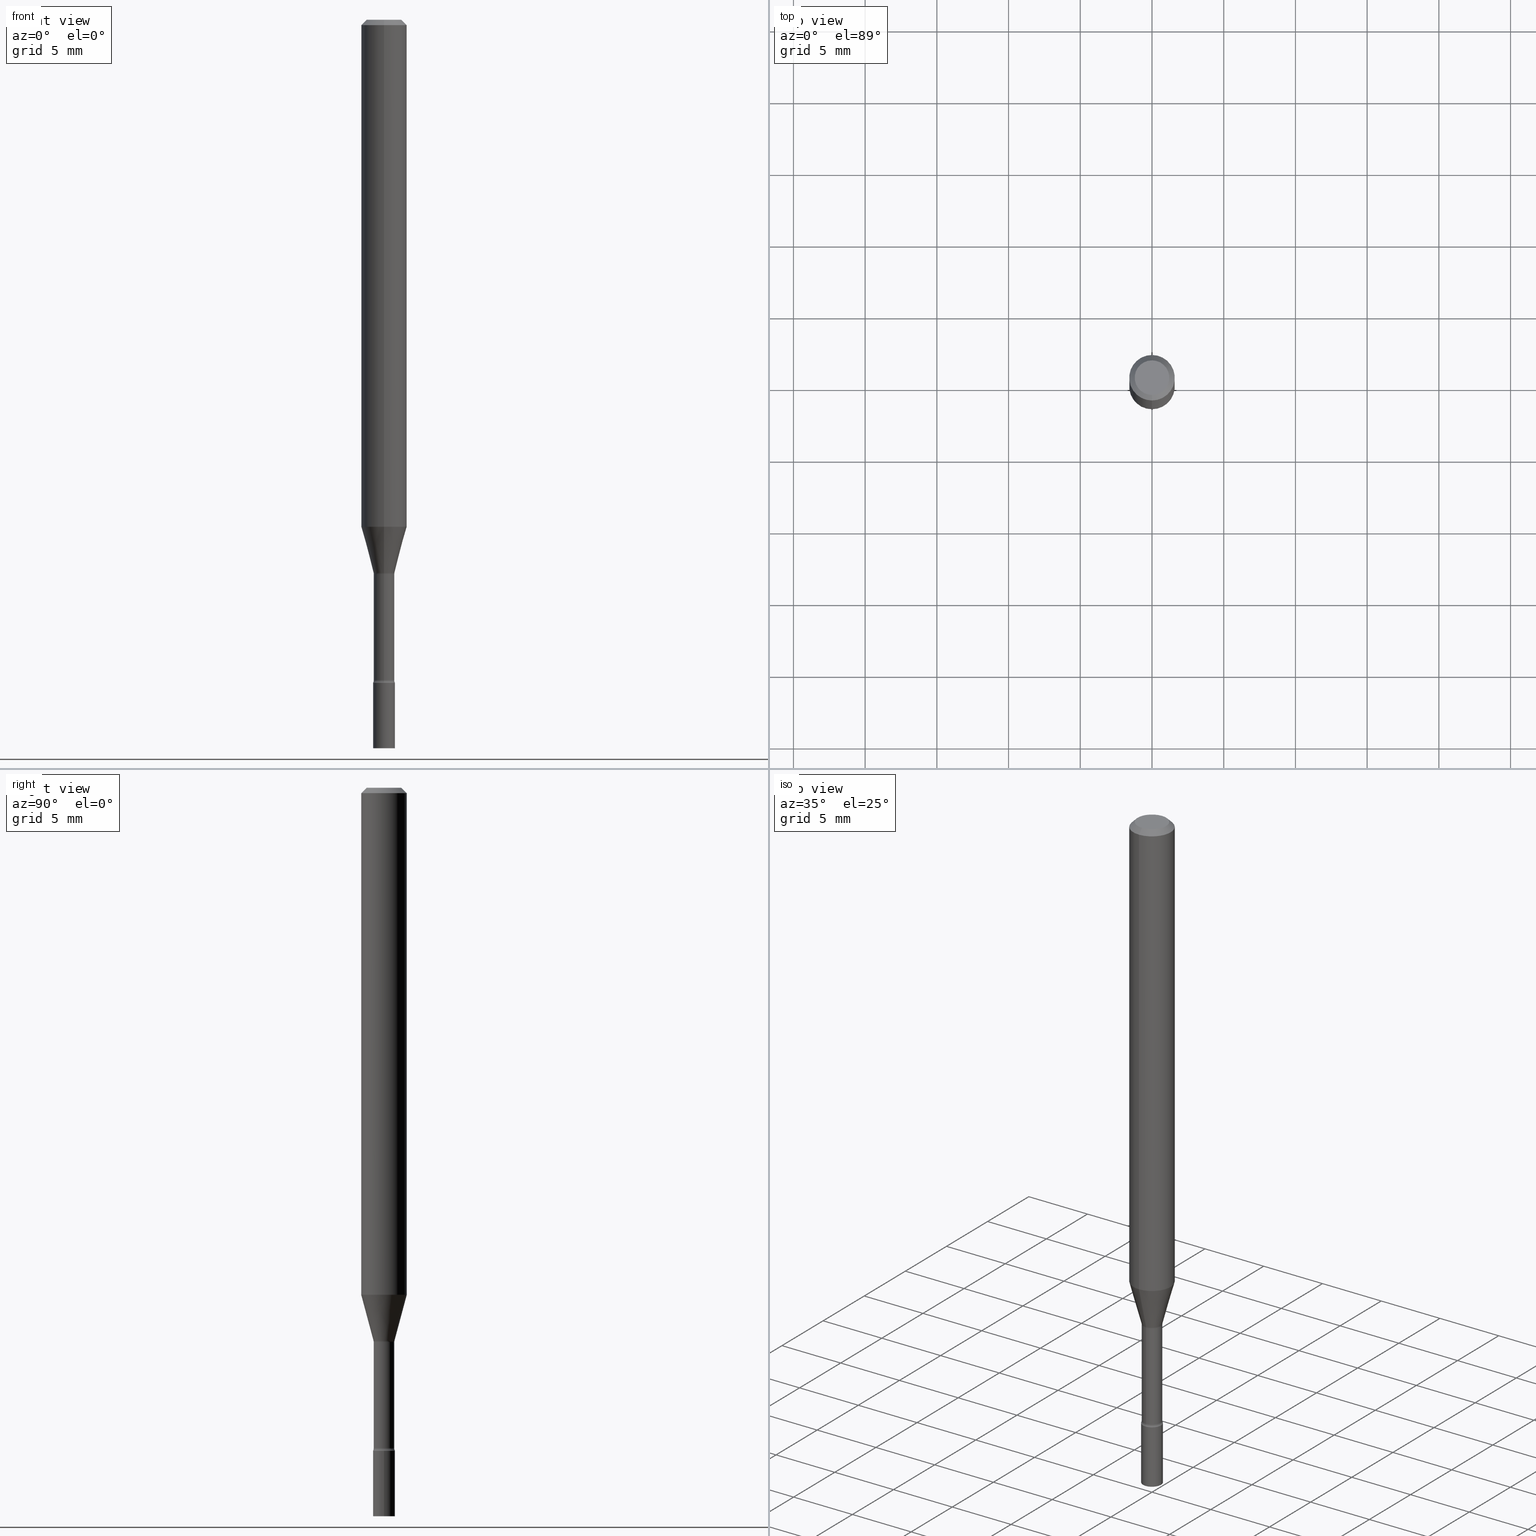
[diagram: canonical four-view strip — front | top / right | iso, engineering-drawing reading convention]
A machine part, canonical four-view strip (front | top / right | iso — engineering-drawing reading convention). The complete STEP part file that produces these views, byte-faithful:
ISO-10303-21;
HEADER;
FILE_DESCRIPTION (( 'STEP AP203' ),
    '1' );
FILE_NAME ('03466.STEP',
    '2024-03-08T21:26:50',
    ( '' ),
    ( '' ),
    'SwSTEP 2.0',
    'SolidWorks 2023',
    '' );
FILE_SCHEMA (( 'CONFIG_CONTROL_DESIGN' ));
ENDSEC;

DATA;
#1 = DIRECTION ( 'NONE',  ( -6.982962677686266711E-15, -1.000000000000000000, 3.491603899015669090E-15 ) ) ;
#2 = ORIENTED_EDGE ( 'NONE', *, *, #489, .F. ) ;
#3 = ORIENTED_EDGE ( 'NONE', *, *, #199, .T. ) ;
#4 = DIRECTION ( 'NONE',  ( -6.982962677686265922E-15, -1.000000000000000000, 3.491603899015669090E-15 ) ) ;
#5 = AXIS2_PLACEMENT_3D ( 'NONE', #12, #133, #340 ) ;
#6 = CARTESIAN_POINT ( 'NONE',  ( 0.000000000000000000, 0.000000000000000000, 0.000000000000000000 ) ) ;
#7 = ORIENTED_EDGE ( 'NONE', *, *, #206, .F. ) ;
#8 = CARTESIAN_POINT ( 'NONE',  ( 0.000000000000000000, 0.000000000000000000, 0.000000000000000000 ) ) ;
#9 = DIRECTION ( 'NONE',  ( -2.438088387897960049E-29, 3.491481338843145188E-15, 1.000000000000000000 ) ) ;
#10 = ORIENTED_EDGE ( 'NONE', *, *, #105, .T. ) ;
#11 =( LENGTH_UNIT ( ) NAMED_UNIT ( * ) SI_UNIT ( $, .METRE. ) );
#12 = CARTESIAN_POINT ( 'NONE',  ( 3.712317934641546488E-29, -5.300577698306894127E-15, -1.518092501787273063 ) ) ;
#13 = AXIS2_PLACEMENT_3D ( 'NONE', #459, #390, #191 ) ;
#14 = DIRECTION ( 'NONE',  ( -6.982962677686265922E-15, -1.000000000000000000, 4.370956789862821150E-15 ) ) ;
#15 = CIRCLE ( 'NONE', #317, 0.06250000000000000000 ) ;
#16 = EDGE_CURVE ( 'NONE', #277, #286, #407, .T. ) ;
#17 = AXIS2_PLACEMENT_3D ( 'NONE', #484, #249, #403 ) ;
#18 = ORIENTED_EDGE ( 'NONE', *, *, #261, .F. ) ;
#19 = LINE ( 'NONE', #273, #35 ) ;
#20 = DIRECTION ( 'NONE',  ( 1.000000000000000000, -6.982962677686268288E-15, 0.000000000000000000 ) ) ;
#21 = ORIENTED_EDGE ( 'NONE', *, *, #400, .F. ) ;
#22 = CARTESIAN_POINT ( 'NONE',  ( -4.364351673553916201E-16, -0.06250000000000000000, 2.182252436884793182E-16 ) ) ;
#23 = CARTESIAN_POINT ( 'NONE',  ( -0.02999999999999999889, -6.455566536462378445E-15, -1.820000000000000062 ) ) ;
#24 = ORIENTED_EDGE ( 'NONE', *, *, #405, .F. ) ;
#25 = DIRECTION ( 'NONE',  ( -2.445383222874086491E-29, 3.491603899015669090E-15, 1.000000000000000000 ) ) ;
#26 = CARTESIAN_POINT ( 'NONE',  ( 3.712317934641546488E-29, -5.300577698306894127E-15, -1.518092501787273063 ) ) ;
#27 = AXIS2_PLACEMENT_3D ( 'NONE', #318, #73, #389 ) ;
#28 = AXIS2_PLACEMENT_3D ( 'NONE', #93, #305, #91 ) ;
#29 = PERSON_AND_ORGANIZATION ( #193, #77 ) ;
#30 = CARTESIAN_POINT ( 'NONE',  ( 0.000000000000000000, 0.000000000000000000, 0.000000000000000000 ) ) ;
#31 = DATE_TIME_ROLE ( 'creation_date' ) ;
#32 = CARTESIAN_POINT ( 'NONE',  ( 7.069135662767674263E-46, -1.009355973816674940E-31, -2.890808931967414933E-17 ) ) ;
#33 = EDGE_CURVE ( 'NONE', #74, #100, #280, .T. ) ;
#34 = DIRECTION ( 'NONE',  ( -2.445383222874086491E-29, 3.491603899015669090E-15, 1.000000000000000000 ) ) ;
#35 = VECTOR ( 'NONE', #498, 39.37007874015748854 ) ;
#36 = CARTESIAN_POINT ( 'NONE',  ( 4.440892098500967344E-16, 0.06249999999999993755, -0.01500000000000024751 ) ) ;
#37 = FACE_OUTER_BOUND ( 'NONE', #371, .T. ) ;
#38 = EDGE_CURVE ( 'NONE', #172, #187, #472, .T. ) ;
#39 = CARTESIAN_POINT ( 'NONE',  ( 2.094888803306369058E-16, 0.02999999999999301836, -2.000000000000000000 ) ) ;
#40 = ADVANCED_FACE ( 'NONE', ( #463 ), #224, .T. ) ;
#41 = AXIS2_PLACEMENT_3D ( 'NONE', #258, #456, #60 ) ;
#42 = VERTEX_POINT ( 'NONE', #110 ) ;
#43 = EDGE_CURVE ( 'NONE', #404, #53, #149, .T. ) ;
#44 = PERSON_AND_ORGANIZATION ( #193, #77 ) ;
#45 = VERTEX_POINT ( 'NONE', #487 ) ;
#46 =( NAMED_UNIT ( * ) PLANE_ANGLE_UNIT ( ) SI_UNIT ( $, .RADIAN. ) );
#47 = AXIS2_PLACEMENT_3D ( 'NONE', #30, #278, #153 ) ;
#48 = ORIENTED_EDGE ( 'NONE', *, *, #270, .F. ) ;
#49 = CARTESIAN_POINT ( 'NONE',  ( 3.668074834311136918E-31, -5.237405848523514187E-17, -0.01500000000000003067 ) ) ;
#50 = EDGE_LOOP ( 'NONE', ( #250, #21, #383, #3 ) ) ;
#51 = CALENDAR_DATE ( 2024, 8, 3 ) ;
#52 = DIRECTION ( 'NONE',  ( -2.445383222874086491E-29, 3.491603899015669090E-15, 1.000000000000000000 ) ) ;
#53 = VERTEX_POINT ( 'NONE', #140 ) ;
#54 = CIRCLE ( 'NONE', #13, 0.01500000000000002720 ) ;
#55 = DIRECTION ( 'NONE',  ( -6.982962677686267499E-15, -1.000000000000000000, 0.000000000000000000 ) ) ;
#56 = PRODUCT_DEFINITION_FORMATION_WITH_SPECIFIED_SOURCE ( 'ANY', '', #292, .NOT_KNOWN. ) ;
#57 = APPROVAL_ROLE ( '' ) ;
#58 = CARTESIAN_POINT ( 'NONE',  ( 4.450597465630837638E-29, -6.354719096208516971E-15, -1.820000000000000062 ) ) ;
#59 = EDGE_CURVE ( 'NONE', #45, #42, #518, .T. ) ;
#60 = DIRECTION ( 'NONE',  ( -6.982962677686265133E-15, -1.000000000000000000, 3.491603899015669090E-15 ) ) ;
#61 = ADVANCED_FACE ( 'NONE', ( #214 ), #275, .T. ) ;
#62 = ADVANCED_BREP_SHAPE_REPRESENTATION ( '03466', ( #517, #341, #501 ), #106 ) ;
#63 = PERSON_AND_ORGANIZATION ( #193, #77 ) ;
#64 = CARTESIAN_POINT ( 'NONE',  ( 3.069544618484004716E-16, 0.04319999999999468709, -1.521974787463811207 ) ) ;
#65 = CC_DESIGN_DATE_AND_TIME_ASSIGNMENT ( #150, #31, ( #283 ) ) ;
#66 = EDGE_CURVE ( 'NONE', #337, #156, #434, .T. ) ;
#67 = PERSON_AND_ORGANIZATION ( #193, #77 ) ;
#68 = CARTESIAN_POINT ( 'NONE',  ( 3.240469674127907994E-16, 0.02871111260565867296, -1.518092501787273063 ) ) ;
#69 = CIRCLE ( 'NONE', #197, 0.02871111260566397427 ) ;
#70 = CC_DESIGN_APPROVAL ( #442, ( #283 ) ) ;
#71 = DIRECTION ( 'NONE',  ( -2.445383222874086491E-29, 3.491603899015669090E-15, 1.000000000000000000 ) ) ;
#72 = DIRECTION ( 'NONE',  ( -6.982962677686265922E-15, -1.000000000000000000, 0.000000000000000000 ) ) ;
#73 = DIRECTION ( 'NONE',  ( -2.445468806185136597E-29, 3.491481338843145583E-15, 1.000000000000000000 ) ) ;
#74 = VERTEX_POINT ( 'NONE', #95 ) ;
#75 = LINE ( 'NONE', #235, #365 ) ;
#76 = CARTESIAN_POINT ( 'NONE',  ( -4.287811248607203282E-16, -0.06250000000000005551, -0.01499999999999981209 ) ) ;
#77 = ORGANIZATION ( 'UNSPECIFIED', 'UNSPECIFIED', '' ) ;
#78 = ORIENTED_EDGE ( 'NONE', *, *, #234, .F. ) ;
#79 = CARTESIAN_POINT ( 'NONE',  ( 3.712317934641546488E-29, -5.300577698306894127E-15, -1.518092501787273063 ) ) ;
#80 = ADVANCED_FACE ( 'NONE', ( #254 ), #182, .F. ) ;
#81 = DIRECTION ( 'NONE',  ( -2.445383222874086491E-29, 3.491603899015669090E-15, 1.000000000000000000 ) ) ;
#82 = EDGE_LOOP ( 'NONE', ( #117, #422, #492, #7 ) ) ;
#83 = CARTESIAN_POINT ( 'NONE',  ( 3.069544618484077193E-16, 0.04319999999999370177, -1.812875394747777147 ) ) ;
#84 = VECTOR ( 'NONE', #269, 39.37007874015748143 ) ;
#85 = APPROVAL_PERSON_ORGANIZATION ( #257, #442, #175 ) ;
#86 = CYLINDRICAL_SURFACE ( 'NONE', #211, 0.06250000000000000000 ) ;
#87 = CIRCLE ( 'NONE', #28, 0.04749999999999999362 ) ;
#88 = DIRECTION ( 'NONE',  ( 0.000000000000000000, 0.000000000000000000, 1.000000000000000000 ) ) ;
#89 = ORIENTED_EDGE ( 'NONE', *, *, #368, .T. ) ;
#90 = EDGE_CURVE ( 'NONE', #286, #277, #228, .T. ) ;
#91 = DIRECTION ( 'NONE',  ( -6.982962677686266711E-15, -1.000000000000000000, 3.491603899015669485E-15 ) ) ;
#92 = EDGE_LOOP ( 'NONE', ( #431, #167, #477, #130 ) ) ;
#93 = CARTESIAN_POINT ( 'NONE',  ( 7.069135662767674263E-46, -1.009355973816674940E-31, -2.890808931967414933E-17 ) ) ;
#94 = CONICAL_SURFACE ( 'NONE', #204, 0.02871111260566397427, 0.2617993877991500740 ) ;
#95 = CARTESIAN_POINT ( 'NONE',  ( -3.773273898774340269E-16, -0.04749999999999999362, 1.369430958835701132E-16 ) ) ;
#96 = CIRCLE ( 'NONE', #474, 0.02819999999999994733 ) ;
#97 = ORIENTED_EDGE ( 'NONE', *, *, #159, .F. ) ;
#98 = APPLICATION_PROTOCOL_DEFINITION ( 'international standard', 'config_control_design', 1994, #216 ) ;
#99 = DIMENSIONAL_EXPONENTS ( 1.000000000000000000, 0.000000000000000000, 0.000000000000000000, 0.000000000000000000, 0.000000000000000000, 0.000000000000000000, 0.000000000000000000 ) ;
#100 = VERTEX_POINT ( 'NONE', #267 ) ;
#101 = PERSON_AND_ORGANIZATION_ROLE ( 'creator' ) ;
#102 = ORIENTED_EDGE ( 'NONE', *, *, #351, .T. ) ;
#103 = CARTESIAN_POINT ( 'NONE',  ( 0.02999999999999999889, -6.563984917025112954E-15, -1.820000000000000062 ) ) ;
#104 = CLOSED_SHELL ( 'NONE', ( #297, #40, #195, #319 ) ) ;
#105 = EDGE_CURVE ( 'NONE', #53, #100, #265, .T. ) ;
#106 =( GEOMETRIC_REPRESENTATION_CONTEXT ( 3 ) GLOBAL_UNCERTAINTY_ASSIGNED_CONTEXT ( ( #129 ) ) GLOBAL_UNIT_ASSIGNED_CONTEXT ( ( #443, #46, #171 ) ) REPRESENTATION_CONTEXT ( 'NONE', 'WORKASPACE' ) );
#107 = DIRECTION ( 'NONE',  ( -2.445468806185136597E-29, 3.491481338843145583E-15, 1.000000000000000000 ) ) ;
#108 = CALENDAR_DATE ( 2024, 8, 3 ) ;
#109 = DIRECTION ( 'NONE',  ( -1.807323732225328562E-15, -0.2588190451025179639, 0.9659258262890690894 ) ) ;
#110 = CARTESIAN_POINT ( 'NONE',  ( -2.094888803305438202E-16, -0.03000000000000640002, -1.819999999999999618 ) ) ;
#111 = PERSON_AND_ORGANIZATION_ROLE ( 'creator' ) ;
#112 = CARTESIAN_POINT ( 'NONE',  ( -0.02999999999999999889, -6.455566536462378445E-15, -2.000000000000000000 ) ) ;
#113 = SHAPE_DEFINITION_REPRESENTATION ( #201, #62 ) ;
#114 = DIRECTION ( 'NONE',  ( -2.445383222874086491E-29, 3.491603899015669090E-15, 1.000000000000000000 ) ) ;
#115 = CARTESIAN_POINT ( 'NONE',  ( 4.440892098500625669E-16, 0.06250000000000000000, -2.182252436884793182E-16 ) ) ;
#116 = CARTESIAN_POINT ( 'NONE',  ( 0.000000000000000000, 0.000000000000000000, 0.000000000000000000 ) ) ;
#117 = ORIENTED_EDGE ( 'NONE', *, *, #38, .F. ) ;
#118 = DIRECTION ( 'NONE',  ( -2.445383222874086491E-29, 3.491603899015669090E-15, 1.000000000000000000 ) ) ;
#119 = EDGE_CURVE ( 'NONE', #123, #433, #147, .T. ) ;
#120 = CIRCLE ( 'NONE', #387, 0.01500000000000002720 ) ;
#121 = DIRECTION ( 'NONE',  ( -6.982962677686265922E-15, -1.000000000000000000, 3.491603899015669090E-15 ) ) ;
#122 = CARTESIAN_POINT ( 'NONE',  ( 0.000000000000000000, 0.000000000000000000, 0.000000000000000000 ) ) ;
#123 = VERTEX_POINT ( 'NONE', #460 ) ;
#124 = EDGE_CURVE ( 'NONE', #172, #404, #19, .T. ) ;
#125 = FACE_OUTER_BOUND ( 'NONE', #145, .T. ) ;
#126 = AXIS2_PLACEMENT_3D ( 'NONE', #122, #162, #161 ) ;
#127 = CC_DESIGN_APPROVAL ( #173, ( #56 ) ) ;
#128 = CARTESIAN_POINT ( 'NONE',  ( 2.131628207280748157E-16, 0.02999999999999369144, -1.820000000000000284 ) ) ;
#129 = UNCERTAINTY_MEASURE_WITH_UNIT (LENGTH_MEASURE( 1.000000000000000082E-05 ), #443, 'distance_accuracy_value', 'NONE');
#130 = ORIENTED_EDGE ( 'NONE', *, *, #382, .T. ) ;
#131 = ORIENTED_EDGE ( 'NONE', *, *, #66, .F. ) ;
#132 = FACE_OUTER_BOUND ( 'NONE', #92, .T. ) ;
#133 = DIRECTION ( 'NONE',  ( -2.445383222874086491E-29, 3.491603899015669090E-15, 1.000000000000000000 ) ) ;
#134 = EDGE_CURVE ( 'NONE', #100, #433, #15, .T. ) ;
#135 = DIRECTION ( 'NONE',  ( -2.445383222874086491E-29, 3.491603899015669090E-15, 1.000000000000000000 ) ) ;
#136 = AXIS2_PLACEMENT_3D ( 'NONE', #39, #288, #469 ) ;
#137 = CARTESIAN_POINT ( 'NONE',  ( -3.016639876760025366E-16, -0.04320000000000635137, -1.812875394747776703 ) ) ;
#138 = ORIENTED_EDGE ( 'NONE', *, *, #134, .F. ) ;
#139 = FACE_OUTER_BOUND ( 'NONE', #262, .T. ) ;
#140 = CARTESIAN_POINT ( 'NONE',  ( -4.364351673553577484E-16, -0.06250000000000488498, -1.391990657300387513 ) ) ;
#141 = ORIENTED_EDGE ( 'NONE', *, *, #90, .F. ) ;
#142 = ADVANCED_FACE ( 'NONE', ( #189 ), #508, .T. ) ;
#143 = COORDINATED_UNIVERSAL_TIME_OFFSET ( 5, 0, .BEHIND. ) ;
#144 = DIRECTION ( 'NONE',  ( -2.445468806185136597E-29, 3.491481338843145583E-15, 1.000000000000000000 ) ) ;
#145 = EDGE_LOOP ( 'NONE', ( #426, #306 ) ) ;
#146 = APPROVAL_STATUS ( 'not_yet_approved' ) ;
#147 = LINE ( 'NONE', #302, #349 ) ;
#148 = DIRECTION ( 'NONE',  ( 1.000000000000000000, -7.105427357601001070E-15, 4.926317009471312026E-29 ) ) ;
#149 = CIRCLE ( 'NONE', #290, 0.06250000000000000000 ) ;
#150 = DATE_AND_TIME ( #108, #458 ) ;
#151 = FACE_OUTER_BOUND ( 'NONE', #475, .T. ) ;
#152 = PERSON_AND_ORGANIZATION_ROLE ( 'design_supplier' ) ;
#153 = DIRECTION ( 'NONE',  ( 1.000000000000000000, -6.982962677686267499E-15, 4.876176775795936353E-29 ) ) ;
#154 = PERSON_AND_ORGANIZATION ( #193, #77 ) ;
#155 = DIRECTION ( 'NONE',  ( -2.445383222874086491E-29, 3.491603899015669090E-15, 1.000000000000000000 ) ) ;
#156 = VERTEX_POINT ( 'NONE', #466 ) ;
#157 = AXIS2_PLACEMENT_3D ( 'NONE', #32, #25, #495 ) ;
#158 = AXIS2_PLACEMENT_3D ( 'NONE', #8, #135, #410 ) ;
#159 = EDGE_CURVE ( 'NONE', #404, #433, #311, .T. ) ;
#160 = FACE_OUTER_BOUND ( 'NONE', #217, .T. ) ;
#161 = DIRECTION ( 'NONE',  ( 1.000000000000000000, -6.982962677686267499E-15, 4.876176775795936353E-29 ) ) ;
#162 = DIRECTION ( 'NONE',  ( -2.445468806185136597E-29, 3.491481338843145583E-15, 1.000000000000000000 ) ) ;
#163 = EDGE_CURVE ( 'NONE', #172, #337, #120, .T. ) ;
#164 = ORIENTED_EDGE ( 'NONE', *, *, #270, .T. ) ;
#165 = AXIS2_PLACEMENT_3D ( 'NONE', #213, #52, #296 ) ;
#166 = FACE_OUTER_BOUND ( 'NONE', #496, .T. ) ;
#167 = ORIENTED_EDGE ( 'NONE', *, *, #445, .F. ) ;
#168 = APPLICATION_CONTEXT ( 'configuration controlled 3d designs of mechanical parts and assemblies' ) ;
#169 = DIRECTION ( 'NONE',  ( -2.445383222874086211E-29, 3.491603899015669090E-15, 1.000000000000000000 ) ) ;
#170 = VERTEX_POINT ( 'NONE', #112 ) ;
#171 =( NAMED_UNIT ( * ) SI_UNIT ( $, .STERADIAN. ) SOLID_ANGLE_UNIT ( ) );
#172 = VERTEX_POINT ( 'NONE', #68 ) ;
#173 = APPROVAL ( #461, 'UNSPECIFIED' ) ;
#174 = VECTOR ( 'NONE', #346, 39.37007874015748143 ) ;
#175 = APPROVAL_ROLE ( '' ) ;
#176 = ORIENTED_EDGE ( 'NONE', *, *, #356, .T. ) ;
#177 = CARTESIAN_POINT ( 'NONE',  ( 3.668074834311136918E-31, -5.237405848523514187E-17, -0.01500000000000003067 ) ) ;
#178 = EDGE_CURVE ( 'NONE', #187, #172, #69, .T. ) ;
#179 = CARTESIAN_POINT ( 'NONE',  ( 3.403950599759840032E-29, -4.860280006423417622E-15, -1.391990657300387735 ) ) ;
#180 = ORIENTED_EDGE ( 'NONE', *, *, #405, .T. ) ;
#181 = LENGTH_MEASURE_WITH_UNIT ( LENGTH_MEASURE( 0.02539999999999999897 ), #11 );
#182 = TOROIDAL_SURFACE ( 'NONE', #41, 0.04320000000000002310, 0.01500000000000008098 ) ;
#183 = AXIS2_PLACEMENT_3D ( 'NONE', #83, #202, #239 ) ;
#184 = CARTESIAN_POINT ( 'NONE',  ( -2.004886277601620918E-16, -0.02871111260566927559, -1.518092501787273063 ) ) ;
#185 = PLANE ( 'NONE',  #510 ) ;
#186 = CARTESIAN_POINT ( 'NONE',  ( 4.450753227256948741E-29, -6.354496036694524637E-15, -1.820000000000000062 ) ) ;
#187 = VERTEX_POINT ( 'NONE', #184 ) ;
#188 = APPROVAL_DATE_TIME ( #264, #339 ) ;
#189 = FACE_OUTER_BOUND ( 'NONE', #452, .T. ) ;
#190 = AXIS2_PLACEMENT_3D ( 'NONE', #316, #462, #274 ) ;
#191 = DIRECTION ( 'NONE',  ( -6.982962677686267499E-15, -1.000000000000000000, 0.000000000000000000 ) ) ;
#192 = DIRECTION ( 'NONE',  ( -2.445383222874086491E-29, 3.491603899015669090E-15, 1.000000000000000000 ) ) ;
#193 = PERSON ( 'UNSPECIFIED', 'UNSPECIFIED', 'UNSPECIFIED', ('UNSPECIFIED'), ('UNSPECIFIED'), ('UNSPECIFIED') ) ;
#194 = DIRECTION ( 'NONE',  ( -2.445468806185136597E-29, 3.491481338843145583E-15, 1.000000000000000000 ) ) ;
#195 = ADVANCED_FACE ( 'NONE', ( #226 ), #312, .T. ) ;
#196 = LINE ( 'NONE', #363, #276 ) ;
#197 = AXIS2_PLACEMENT_3D ( 'NONE', #227, #155, #505 ) ;
#198 = SECURITY_CLASSIFICATION ( '', '', #453 ) ;
#199 = EDGE_CURVE ( 'NONE', #42, #447, #499, .T. ) ;
#200 = DIRECTION ( 'NONE',  ( -6.982962677686265922E-15, -1.000000000000000000, 0.000000000000000000 ) ) ;
#201 = PRODUCT_DEFINITION_SHAPE ( 'NONE', 'NONE',  #283 ) ;
#202 = DIRECTION ( 'NONE',  ( 1.000000000000000000, -7.105427357601001070E-15, 4.926317009471312026E-29 ) ) ;
#203 = CARTESIAN_POINT ( 'NONE',  ( 2.003730514843925967E-16, 0.02819999999999468418, -1.521974787463810985 ) ) ;
#204 = AXIS2_PLACEMENT_3D ( 'NONE', #79, #241, #200 ) ;
#205 = CARTESIAN_POINT ( 'NONE',  ( 3.721941866543002798E-29, -5.313946568619659199E-15, -1.521974787463810985 ) ) ;
#206 = EDGE_CURVE ( 'NONE', #187, #156, #54, .T. ) ;
#207 = FACE_OUTER_BOUND ( 'NONE', #367, .T. ) ;
#208 = CC_DESIGN_PERSON_AND_ORGANIZATION_ASSIGNMENT ( #294, #101, ( #283 ) ) ;
#209 = COORDINATED_UNIVERSAL_TIME_OFFSET ( 5, 0, .BEHIND. ) ;
#210 = VECTOR ( 'NONE', #109, 39.37007874015748854 ) ;
#211 = AXIS2_PLACEMENT_3D ( 'NONE', #486, #479, #4 ) ;
#212 = CARTESIAN_POINT ( 'NONE',  ( 0.02999999999999999889, -7.192451558016878693E-15, -2.000000000000000000 ) ) ;
#213 = CARTESIAN_POINT ( 'NONE',  ( 3.721811610901357070E-29, -5.314133102112187367E-15, -1.521974787463810985 ) ) ;
#214 = FACE_OUTER_BOUND ( 'NONE', #304, .T. ) ;
#215 = ADVANCED_FACE ( 'NONE', ( #386 ), #372, .F. ) ;
#216 = APPLICATION_CONTEXT ( 'configuration controlled 3d designs of mechanical parts and assemblies' ) ;
#217 = EDGE_LOOP ( 'NONE', ( #409, #89, #345, #24 ) ) ;
#218 = AXIS2_PLACEMENT_3D ( 'NONE', #353, #144, #307 ) ;
#219 = AXIS2_PLACEMENT_3D ( 'NONE', #362, #81, #282 ) ;
#220 = CARTESIAN_POINT ( 'NONE',  ( 4.450753227256948741E-29, -6.354496036694524637E-15, -1.820000000000000062 ) ) ;
#221 = EDGE_LOOP ( 'NONE', ( #428, #102, #376, #326 ) ) ;
#222 = APPROVAL_ROLE ( '' ) ;
#223 = CARTESIAN_POINT ( 'NONE',  ( 0.02999999999999999889, -2.094888803305880210E-16, 1.462853032738780878E-30 ) ) ;
#224 = PLANE ( 'NONE',  #236 ) ;
#225 = ORIENTED_EDGE ( 'NONE', *, *, #248, .T. ) ;
#226 = FACE_OUTER_BOUND ( 'NONE', #242, .T. ) ;
#227 = CARTESIAN_POINT ( 'NONE',  ( 3.712317934641546488E-29, -5.300577698306894127E-15, -1.518092501787273063 ) ) ;
#228 = CIRCLE ( 'NONE', #401, 0.02999999999999999889 ) ;
#229 = LOCAL_TIME ( 16, 26, 50.00000000000000000, #209 ) ;
#230 = CALENDAR_DATE ( 2024, 8, 3 ) ;
#231 = DIRECTION ( 'NONE',  ( -6.982962677686265922E-15, -1.000000000000000000, 4.370956789862821150E-15 ) ) ;
#232 = ORIENTED_EDGE ( 'NONE', *, *, #105, .F. ) ;
#233 = CARTESIAN_POINT ( 'NONE',  ( 4.433175075477450519E-29, -6.329842796730908159E-15, -1.812875394747776925 ) ) ;
#234 = EDGE_CURVE ( 'NONE', #187, #53, #314, .T. ) ;
#235 = CARTESIAN_POINT ( 'NONE',  ( -0.02999999999999999889, 2.131628207280300479E-16, -1.475680527076471707E-30 ) ) ;
#236 = AXIS2_PLACEMENT_3D ( 'NONE', #186, #9, #454 ) ;
#237 = EDGE_LOOP ( 'NONE', ( #396, #18 ) ) ;
#238 = CC_DESIGN_PERSON_AND_ORGANIZATION_ASSIGNMENT ( #29, #497, ( #198 ) ) ;
#239 = DIRECTION ( 'NONE',  ( 7.105427357601001859E-15, 1.000000000000000000, 0.000000000000000000 ) ) ;
#240 = DIRECTION ( 'NONE',  ( -2.445383222874086491E-29, 3.491603899015669090E-15, 1.000000000000000000 ) ) ;
#241 = DIRECTION ( 'NONE',  ( -2.445383222874086491E-29, 3.491603899015669090E-15, 1.000000000000000000 ) ) ;
#242 = EDGE_LOOP ( 'NONE', ( #490, #450, #164, #141 ) ) ;
#243 = PRODUCT_RELATED_PRODUCT_CATEGORY ( 'detail', '', ( #292 ) ) ;
#244 = AXIS2_PLACEMENT_3D ( 'NONE', #137, #303, #55 ) ;
#245 = CONICAL_SURFACE ( 'NONE', #373, 0.06250000000000000000, 0.7853981633974483900 ) ;
#246 = DIRECTION ( 'NONE',  ( 6.982962677686265922E-15, 1.000000000000000000, -3.483106191921935554E-15 ) ) ;
#247 = DIRECTION ( 'NONE',  ( 1.000000000000000000, 0.000000000000000000, 0.000000000000000000 ) ) ;
#248 = EDGE_CURVE ( 'NONE', #53, #404, #378, .T. ) ;
#249 = DIRECTION ( 'NONE',  ( -2.445383222874086491E-29, 3.491603899015669090E-15, 1.000000000000000000 ) ) ;
#250 = ORIENTED_EDGE ( 'NONE', *, *, #351, .F. ) ;
#251 = AXIS2_PLACEMENT_3D ( 'NONE', #266, #194, #384 ) ;
#252 = CONICAL_SURFACE ( 'NONE', #310, 0.06250000000000000000, 0.7853981633974483900 ) ;
#253 = MECHANICAL_CONTEXT ( 'NONE', #168, 'mechanical' ) ;
#254 = FACE_OUTER_BOUND ( 'NONE', #221, .T. ) ;
#255 = ORIENTED_EDGE ( 'NONE', *, *, #124, .F. ) ;
#256 = EDGE_CURVE ( 'NONE', #74, #123, #263, .T. ) ;
#257 = PERSON_AND_ORGANIZATION ( #193, #77 ) ;
#258 = CARTESIAN_POINT ( 'NONE',  ( 4.433330227356254236E-29, -6.329620610409764707E-15, -1.812875394747776925 ) ) ;
#259 = EDGE_LOOP ( 'NONE', ( #482, #176, #180, #131 ) ) ;
#260 = DATE_AND_TIME ( #230, #324 ) ;
#261 = EDGE_CURVE ( 'NONE', #170, #457, #441, .T. ) ;
#262 = EDGE_LOOP ( 'NONE', ( #97, #308, #10, #500 ) ) ;
#263 = CIRCLE ( 'NONE', #157, 0.04749999999999999362 ) ;
#264 = DATE_AND_TIME ( #507, #285 ) ;
#265 = LINE ( 'NONE', #22, #174 ) ;
#266 = CARTESIAN_POINT ( 'NONE',  ( 4.890937612370273194E-29, -6.982962677686291165E-15, -2.000000000000000000 ) ) ;
#267 = CARTESIAN_POINT ( 'NONE',  ( -4.364351673553912750E-16, -0.06250000000000005551, -0.01499999999999981209 ) ) ;
#268 = CARTESIAN_POINT ( 'NONE',  ( 3.403950599759840032E-29, -4.860280006423417622E-15, -1.391990657300387735 ) ) ;
#269 = DIRECTION ( 'NONE',  ( -4.851104656540964275E-15, -0.7071067811865500152, -0.7071067811865450192 ) ) ;
#270 = EDGE_CURVE ( 'NONE', #457, #277, #503, .T. ) ;
#271 = APPROVAL_DATE_TIME ( #417, #173 ) ;
#272 = DIRECTION ( 'NONE',  ( 4.937700262164548042E-15, 0.7071067811865451302, -0.7071067811865499042 ) ) ;
#273 = CARTESIAN_POINT ( 'NONE',  ( 2.040047249754848891E-16, 0.02871111260565867296, -1.518092501787273063 ) ) ;
#274 = DIRECTION ( 'NONE',  ( -6.982962677686266711E-15, -1.000000000000000000, 3.491603899015669090E-15 ) ) ;
#275 = CONICAL_SURFACE ( 'NONE', #5, 0.02871111260566397427, 0.2617993877991500740 ) ;
#276 = VECTOR ( 'NONE', #169, 39.37007874015748143 ) ;
#277 = VERTEX_POINT ( 'NONE', #103 ) ;
#278 = DIRECTION ( 'NONE',  ( -2.445468806185136597E-29, 3.491481338843145583E-15, 1.000000000000000000 ) ) ;
#279 = DIRECTION ( 'NONE',  ( -2.445383222874086491E-29, 3.491603899015669090E-15, 1.000000000000000000 ) ) ;
#280 = LINE ( 'NONE', #76, #84 ) ;
#281 = EDGE_CURVE ( 'NONE', #457, #170, #284, .T. ) ;
#282 = DIRECTION ( 'NONE',  ( -6.982962677686265922E-15, -1.000000000000000000, 0.000000000000000000 ) ) ;
#283 = PRODUCT_DEFINITION ( 'UNKNOWN', '', #56, #293 ) ;
#284 = CIRCLE ( 'NONE', #251, 0.02999999999999999889 ) ;
#285 = LOCAL_TIME ( 16, 26, 50.00000000000000000, #143 ) ;
#286 = VERTEX_POINT ( 'NONE', #23 ) ;
#287 = ADVANCED_FACE ( 'NONE', ( #151 ), #185, .F. ) ;
#288 = DIRECTION ( 'NONE',  ( 2.438088387897960049E-29, -3.491481338843145188E-15, -1.000000000000000000 ) ) ;
#289 = PLANE ( 'NONE',  #357 ) ;
#290 = AXIS2_PLACEMENT_3D ( 'NONE', #179, #336, #14 ) ;
#291 = ADVANCED_FACE ( 'NONE', ( #125 ), #289, .F. ) ;
#292 = PRODUCT ( '03466', '03466', '', ( #253 ) ) ;
#293 = DESIGN_CONTEXT ( 'detailed design', #216, 'design' ) ;
#294 = PERSON_AND_ORGANIZATION ( #193, #77 ) ;
#295 = ORIENTED_EDGE ( 'NONE', *, *, #248, .F. ) ;
#296 = DIRECTION ( 'NONE',  ( -6.982962677686265922E-15, -1.000000000000000000, 0.000000000000000000 ) ) ;
#297 = ADVANCED_FACE ( 'NONE', ( #166 ), #325, .T. ) ;
#298 = ORIENTED_EDGE ( 'NONE', *, *, #206, .T. ) ;
#299 = AXIS2_PLACEMENT_3D ( 'NONE', #26, #192, #506 ) ;
#300 = CC_DESIGN_SECURITY_CLASSIFICATION ( #198, ( #56 ) ) ;
#301 = DIRECTION ( 'NONE',  ( 2.445383222874086491E-29, -3.491603899015669090E-15, -1.000000000000000000 ) ) ;
#302 = CARTESIAN_POINT ( 'NONE',  ( 4.364351673553919652E-16, 0.06249999999999995143, -0.01500000000000024751 ) ) ;
#303 = DIRECTION ( 'NONE',  ( -1.000000000000000000, 6.982962677686265922E-15, -4.883557194083112901E-29 ) ) ;
#304 = EDGE_LOOP ( 'NONE', ( #348, #520, #295, #78 ) ) ;
#305 = DIRECTION ( 'NONE',  ( -2.445383222874086491E-29, 3.491603899015669090E-15, 1.000000000000000000 ) ) ;
#306 = ORIENTED_EDGE ( 'NONE', *, *, #256, .T. ) ;
#307 = DIRECTION ( 'NONE',  ( 1.000000000000000000, -6.982962677686268288E-15, 0.000000000000000000 ) ) ;
#308 = ORIENTED_EDGE ( 'NONE', *, *, #43, .T. ) ;
#309 = AXIS2_PLACEMENT_3D ( 'NONE', #354, #71, #430 ) ;
#310 = AXIS2_PLACEMENT_3D ( 'NONE', #177, #491, #377 ) ;
#311 = LINE ( 'NONE', #115, #448 ) ;
#312 = CYLINDRICAL_SURFACE ( 'NONE', #47, 0.02999999999999999889 ) ;
#313 = DATE_TIME_ROLE ( 'classification_date' ) ;
#314 = LINE ( 'NONE', #344, #210 ) ;
#315 = AXIS2_PLACEMENT_3D ( 'NONE', #268, #419, #231 ) ;
#316 = CARTESIAN_POINT ( 'NONE',  ( 3.721941866543002798E-29, -5.313946568619659199E-15, -1.521974787463810985 ) ) ;
#317 = AXIS2_PLACEMENT_3D ( 'NONE', #355, #114, #423 ) ;
#318 = CARTESIAN_POINT ( 'NONE',  ( 4.450753227256948741E-29, -6.354496036694524637E-15, -1.820000000000000062 ) ) ;
#319 = ADVANCED_FACE ( 'NONE', ( #321 ), #470, .T. ) ;
#320 = CYLINDRICAL_SURFACE ( 'NONE', #380, 0.02819999999999997162 ) ;
#321 = FACE_OUTER_BOUND ( 'NONE', #237, .T. ) ;
#322 = CARTESIAN_POINT ( 'NONE',  ( 2.003730514843480261E-16, 0.02819999999999997162, -9.846322995224176842E-17 ) ) ;
#323 = VERTEX_POINT ( 'NONE', #435 ) ;
#324 = LOCAL_TIME ( 16, 26, 50.00000000000000000, #502 ) ;
#325 = CYLINDRICAL_SURFACE ( 'NONE', #126, 0.02999999999999999889 ) ;
#326 = ORIENTED_EDGE ( 'NONE', *, *, #59, .F. ) ;
#327 = CARTESIAN_POINT ( 'NONE',  ( 3.721811610901357070E-29, -5.314133102112187367E-15, -1.521974787463810985 ) ) ;
#328 = ADVANCED_FACE ( 'NONE', ( #473 ), #393, .F. ) ;
#329 = CLOSED_SHELL ( 'NONE', ( #414, #425, #80, #444, #142, #61, #332, #449, #464, #291, #287, #328, #468, #215 ) ) ;
#330 = CIRCLE ( 'NONE', #17, 0.02999999999999999889 ) ;
#331 = DATE_AND_TIME ( #51, #229 ) ;
#332 = ADVANCED_FACE ( 'NONE', ( #37 ), #94, .T. ) ;
#333 = ORIENTED_EDGE ( 'NONE', *, *, #90, .T. ) ;
#334 = ORIENTED_EDGE ( 'NONE', *, *, #159, .T. ) ;
#335 = ORIENTED_EDGE ( 'NONE', *, *, #33, .T. ) ;
#336 = DIRECTION ( 'NONE',  ( -2.445383222874086491E-29, 3.491603899015669090E-15, 1.000000000000000000 ) ) ;
#337 = VERTEX_POINT ( 'NONE', #203 ) ;
#338 = CIRCLE ( 'NONE', #424, 0.02819999999999999590 ) ;
#339 = APPROVAL ( #146, 'UNSPECIFIED' ) ;
#340 = DIRECTION ( 'NONE',  ( -6.982962677686265922E-15, -1.000000000000000000, 0.000000000000000000 ) ) ;
#341 = MANIFOLD_SOLID_BREP ( 'Body-Move/Copy2[2]', #329 ) ;
#342 = EDGE_CURVE ( 'NONE', #156, #337, #338, .T. ) ;
#343 = ORIENTED_EDGE ( 'NONE', *, *, #16, .T. ) ;
#344 = CARTESIAN_POINT ( 'NONE',  ( -2.004886277601620918E-16, -0.02871111260566927559, -1.518092501787273063 ) ) ;
#345 = ORIENTED_EDGE ( 'NONE', *, *, #342, .F. ) ;
#346 = DIRECTION ( 'NONE',  ( -2.445383222874086211E-29, 3.491603899015669090E-15, 1.000000000000000000 ) ) ;
#347 = CARTESIAN_POINT ( 'NONE',  ( 2.094888803306324684E-16, 0.02999999999999364286, -1.820000000000000062 ) ) ;
#348 = ORIENTED_EDGE ( 'NONE', *, *, #178, .T. ) ;
#349 = VECTOR ( 'NONE', #272, 39.37007874015748143 ) ;
#350 = PERSON_AND_ORGANIZATION ( #193, #77 ) ;
#351 = EDGE_CURVE ( 'NONE', #323, #447, #488, .T. ) ;
#352 = CC_DESIGN_APPROVAL ( #339, ( #198 ) ) ;
#353 = CARTESIAN_POINT ( 'NONE',  ( 4.890937612370273194E-29, -6.982962677686291165E-15, -2.000000000000000000 ) ) ;
#354 = CARTESIAN_POINT ( 'NONE',  ( 0.000000000000000000, 0.000000000000000000, 0.000000000000000000 ) ) ;
#355 = CARTESIAN_POINT ( 'NONE',  ( 3.668074834311136918E-31, -5.237405848523514187E-17, -0.01500000000000003067 ) ) ;
#356 = EDGE_CURVE ( 'NONE', #323, #45, #402, .T. ) ;
#357 = AXIS2_PLACEMENT_3D ( 'NONE', #512, #397, #361 ) ;
#358 = DIRECTION ( 'NONE',  ( -2.445383222874086211E-29, 3.491603899015669090E-15, 1.000000000000000000 ) ) ;
#359 = APPROVAL_PERSON_ORGANIZATION ( #350, #173, #222 ) ;
#360 = ORIENTED_EDGE ( 'NONE', *, *, #429, .T. ) ;
#361 = DIRECTION ( 'NONE',  ( 6.982962677686265922E-15, 1.000000000000000000, -3.491603899015669090E-15 ) ) ;
#362 = CARTESIAN_POINT ( 'NONE',  ( 4.433175075477450519E-29, -6.329842796730908159E-15, -1.812875394747776925 ) ) ;
#363 = CARTESIAN_POINT ( 'NONE',  ( -1.969195475107524804E-16, -0.02819999999999997162, 9.846322995224176842E-17 ) ) ;
#364 = AXIS2_PLACEMENT_3D ( 'NONE', #58, #427, #72 ) ;
#365 = VECTOR ( 'NONE', #394, 39.37007874015748143 ) ;
#366 = DIRECTION ( 'NONE',  ( -2.445383222874086491E-29, 3.491603899015669090E-15, 1.000000000000000000 ) ) ;
#367 = EDGE_LOOP ( 'NONE', ( #516, #335, #509, #446 ) ) ;
#368 = EDGE_CURVE ( 'NONE', #323, #337, #515, .T. ) ;
#369 = EDGE_LOOP ( 'NONE', ( #343, #333 ) ) ;
#370 = CYLINDRICAL_SURFACE ( 'NONE', #158, 0.02819999999999997162 ) ;
#371 = EDGE_LOOP ( 'NONE', ( #255, #483, #379, #467 ) ) ;
#372 = TOROIDAL_SURFACE ( 'NONE', #190, 0.04320000000000000229, 0.01500000000000002720 ) ;
#373 = AXIS2_PLACEMENT_3D ( 'NONE', #49, #301, #246 ) ;
#374 = ORIENTED_EDGE ( 'NONE', *, *, #199, .F. ) ;
#375 = FACE_OUTER_BOUND ( 'NONE', #259, .T. ) ;
#376 = ORIENTED_EDGE ( 'NONE', *, *, #489, .T. ) ;
#377 = DIRECTION ( 'NONE',  ( 6.982962677686265922E-15, 1.000000000000000000, -3.483106191921935554E-15 ) ) ;
#378 = CIRCLE ( 'NONE', #315, 0.06250000000000000000 ) ;
#379 = ORIENTED_EDGE ( 'NONE', *, *, #234, .T. ) ;
#380 = AXIS2_PLACEMENT_3D ( 'NONE', #116, #279, #432 ) ;
#381 = TOROIDAL_SURFACE ( 'NONE', #511, 0.04320000000000000229, 0.01500000000000002720 ) ;
#382 = EDGE_CURVE ( 'NONE', #433, #100, #395, .T. ) ;
#383 = ORIENTED_EDGE ( 'NONE', *, *, #59, .T. ) ;
#384 = DIRECTION ( 'NONE',  ( 1.000000000000000000, -6.982962677686268288E-15, 0.000000000000000000 ) ) ;
#385 = ORIENTED_EDGE ( 'NONE', *, *, #342, .T. ) ;
#386 = FACE_OUTER_BOUND ( 'NONE', #494, .T. ) ;
#387 = AXIS2_PLACEMENT_3D ( 'NONE', #64, #148, #418 ) ;
#388 = DIRECTION ( 'NONE',  ( -2.445383222874086211E-29, 3.491603899015669090E-15, 1.000000000000000000 ) ) ;
#389 = DIRECTION ( 'NONE',  ( 1.000000000000000000, -6.982962677686268288E-15, 0.000000000000000000 ) ) ;
#390 = DIRECTION ( 'NONE',  ( -1.000000000000000000, 6.982962677686265922E-15, -4.883557194083112901E-29 ) ) ;
#391 = DIRECTION ( 'NONE',  ( -6.982962677686265922E-15, -1.000000000000000000, 0.000000000000000000 ) ) ;
#392 = CC_DESIGN_PERSON_AND_ORGANIZATION_ASSIGNMENT ( #44, #451, ( #292 ) ) ;
#393 = TOROIDAL_SURFACE ( 'NONE', #415, 0.04320000000000002310, 0.01500000000000008098 ) ;
#394 = DIRECTION ( 'NONE',  ( -2.445468806185136877E-29, 3.491481338843145188E-15, 1.000000000000000000 ) ) ;
#395 = CIRCLE ( 'NONE', #416, 0.06250000000000000000 ) ;
#396 = ORIENTED_EDGE ( 'NONE', *, *, #281, .F. ) ;
#397 = DIRECTION ( 'NONE',  ( 2.445383222874085930E-29, -3.491603899015669090E-15, -1.000000000000000000 ) ) ;
#398 = CARTESIAN_POINT ( 'NONE',  ( 4.440892098500963400E-16, 0.06249999999999510808, -1.391990657300387957 ) ) ;
#399 = DIRECTION ( 'NONE',  ( -6.982962677686265922E-15, -1.000000000000000000, 0.000000000000000000 ) ) ;
#400 = EDGE_CURVE ( 'NONE', #45, #323, #96, .T. ) ;
#401 = AXIS2_PLACEMENT_3D ( 'NONE', #220, #107, #20 ) ;
#402 = CIRCLE ( 'NONE', #219, 0.02819999999999994733 ) ;
#403 = DIRECTION ( 'NONE',  ( -6.982962677686265922E-15, -1.000000000000000000, 0.000000000000000000 ) ) ;
#404 = VERTEX_POINT ( 'NONE', #398 ) ;
#405 = EDGE_CURVE ( 'NONE', #45, #156, #196, .T. ) ;
#406 = APPLICATION_PROTOCOL_DEFINITION ( 'international standard', 'config_control_design', 1994, #168 ) ;
#407 = CIRCLE ( 'NONE', #27, 0.02999999999999999889 ) ;
#408 = LOCAL_TIME ( 16, 26, 50.00000000000000000, #421 ) ;
#409 = ORIENTED_EDGE ( 'NONE', *, *, #400, .T. ) ;
#410 = DIRECTION ( 'NONE',  ( -6.982962677686265133E-15, -1.000000000000000000, 3.491603899015669090E-15 ) ) ;
#411 = ORIENTED_EDGE ( 'NONE', *, *, #16, .F. ) ;
#412 = APPROVAL_STATUS ( 'not_yet_approved' ) ;
#413 = ORIENTED_EDGE ( 'NONE', *, *, #163, .F. ) ;
#414 = ADVANCED_FACE ( 'NONE', ( #519 ), #381, .F. ) ;
#415 = AXIS2_PLACEMENT_3D ( 'NONE', #437, #34, #439 ) ;
#416 = AXIS2_PLACEMENT_3D ( 'NONE', #513, #240, #440 ) ;
#417 = DATE_AND_TIME ( #504, #408 ) ;
#418 = DIRECTION ( 'NONE',  ( 7.105427357601001859E-15, 1.000000000000000000, 0.000000000000000000 ) ) ;
#419 = DIRECTION ( 'NONE',  ( -2.445383222874086491E-29, 3.491603899015669090E-15, 1.000000000000000000 ) ) ;
#420 = CC_DESIGN_PERSON_AND_ORGANIZATION_ASSIGNMENT ( #63, #152, ( #56 ) ) ;
#421 = COORDINATED_UNIVERSAL_TIME_OFFSET ( 5, 0, .BEHIND. ) ;
#422 = ORIENTED_EDGE ( 'NONE', *, *, #163, .T. ) ;
#423 = DIRECTION ( 'NONE',  ( -6.982962677686265922E-15, -1.000000000000000000, 3.483106191921935554E-15 ) ) ;
#424 = AXIS2_PLACEMENT_3D ( 'NONE', #327, #478, #399 ) ;
#425 = ADVANCED_FACE ( 'NONE', ( #160 ), #320, .T. ) ;
#426 = ORIENTED_EDGE ( 'NONE', *, *, #445, .T. ) ;
#427 = DIRECTION ( 'NONE',  ( -2.445383222874086491E-29, 3.491603899015669090E-15, 1.000000000000000000 ) ) ;
#428 = ORIENTED_EDGE ( 'NONE', *, *, #356, .F. ) ;
#429 = EDGE_CURVE ( 'NONE', #170, #286, #75, .T. ) ;
#430 = DIRECTION ( 'NONE',  ( -6.982962677686265922E-15, -1.000000000000000000, 3.491603899015669090E-15 ) ) ;
#431 = ORIENTED_EDGE ( 'NONE', *, *, #33, .F. ) ;
#432 = DIRECTION ( 'NONE',  ( -6.982962677686265133E-15, -1.000000000000000000, 3.491603899015669090E-15 ) ) ;
#433 = VERTEX_POINT ( 'NONE', #36 ) ;
#434 = CIRCLE ( 'NONE', #165, 0.02819999999999999590 ) ;
#435 = CARTESIAN_POINT ( 'NONE',  ( 2.067679361062335830E-16, 0.02819999999999361559, -1.812875394747776925 ) ) ;
#436 = APPROVAL_PERSON_ORGANIZATION ( #67, #339, #57 ) ;
#437 = CARTESIAN_POINT ( 'NONE',  ( 4.433330227356254236E-29, -6.329620610409764707E-15, -1.812875394747776925 ) ) ;
#438 = ORIENTED_EDGE ( 'NONE', *, *, #178, .F. ) ;
#439 = DIRECTION ( 'NONE',  ( -6.982962677686265133E-15, -1.000000000000000000, 3.491603899015669090E-15 ) ) ;
#440 = DIRECTION ( 'NONE',  ( -6.982962677686265922E-15, -1.000000000000000000, 3.483106191921935554E-15 ) ) ;
#441 = CIRCLE ( 'NONE', #218, 0.02999999999999999889 ) ;
#442 = APPROVAL ( #412, 'UNSPECIFIED' ) ;
#443 =( CONVERSION_BASED_UNIT ( 'INCH', #181 ) LENGTH_UNIT ( ) NAMED_UNIT ( #99 ) );
#444 = ADVANCED_FACE ( 'NONE', ( #207 ), #252, .T. ) ;
#445 = EDGE_CURVE ( 'NONE', #123, #74, #87, .T. ) ;
#446 = ORIENTED_EDGE ( 'NONE', *, *, #119, .F. ) ;
#447 = VERTEX_POINT ( 'NONE', #128 ) ;
#448 = VECTOR ( 'NONE', #388, 39.37007874015748143 ) ;
#449 = ADVANCED_FACE ( 'NONE', ( #139 ), #86, .T. ) ;
#450 = ORIENTED_EDGE ( 'NONE', *, *, #261, .T. ) ;
#451 = PERSON_AND_ORGANIZATION_ROLE ( 'design_owner' ) ;
#452 = EDGE_LOOP ( 'NONE', ( #225, #334, #138, #232 ) ) ;
#453 = SECURITY_CLASSIFICATION_LEVEL ( 'unclassified' ) ;
#454 = DIRECTION ( 'NONE',  ( 1.000000000000000000, -6.982962677686265922E-15, 4.876176775795935793E-29 ) ) ;
#455 = DIRECTION ( 'NONE',  ( -2.445468806185136877E-29, 3.491481338843145188E-15, 1.000000000000000000 ) ) ;
#456 = DIRECTION ( 'NONE',  ( -2.445383222874086491E-29, 3.491603899015669090E-15, 1.000000000000000000 ) ) ;
#457 = VERTEX_POINT ( 'NONE', #212 ) ;
#458 = LOCAL_TIME ( 16, 26, 50.00000000000000000, #493 ) ;
#459 = CARTESIAN_POINT ( 'NONE',  ( -3.016639876760094391E-16, -0.04320000000000531054, -1.521974787463810763 ) ) ;
#460 = CARTESIAN_POINT ( 'NONE',  ( 3.840629472727447874E-16, 0.04749999999999999362, -1.947592745229184365E-16 ) ) ;
#461 = APPROVAL_STATUS ( 'not_yet_approved' ) ;
#462 = DIRECTION ( 'NONE',  ( -2.445383222874086491E-29, 3.491603899015669090E-15, 1.000000000000000000 ) ) ;
#463 = FACE_OUTER_BOUND ( 'NONE', #369, .T. ) ;
#464 = ADVANCED_FACE ( 'NONE', ( #132 ), #245, .T. ) ;
#465 = VECTOR ( 'NONE', #358, 39.37007874015748143 ) ;
#466 = CARTESIAN_POINT ( 'NONE',  ( -1.969195475107154533E-16, -0.02820000000000531110, -1.521974787463810985 ) ) ;
#467 = ORIENTED_EDGE ( 'NONE', *, *, #43, .F. ) ;
#468 = ADVANCED_FACE ( 'NONE', ( #375 ), #370, .T. ) ;
#469 = DIRECTION ( 'NONE',  ( -1.000000000000000000, 6.982962677686265922E-15, -4.876176775795935793E-29 ) ) ;
#470 = PLANE ( 'NONE',  #136 ) ;
#471 = CC_DESIGN_DATE_AND_TIME_ASSIGNMENT ( #260, #313, ( #198 ) ) ;
#472 = CIRCLE ( 'NONE', #299, 0.02871111260566397427 ) ;
#473 = FACE_OUTER_BOUND ( 'NONE', #50, .T. ) ;
#474 = AXIS2_PLACEMENT_3D ( 'NONE', #233, #118, #391 ) ;
#475 = EDGE_LOOP ( 'NONE', ( #374, #2 ) ) ;
#476 = DIRECTION ( 'NONE',  ( -2.445383222874085930E-29, 3.491603899015669090E-15, 1.000000000000000000 ) ) ;
#477 = ORIENTED_EDGE ( 'NONE', *, *, #119, .T. ) ;
#478 = DIRECTION ( 'NONE',  ( -2.445383222874086491E-29, 3.491603899015669090E-15, 1.000000000000000000 ) ) ;
#479 = DIRECTION ( 'NONE',  ( -2.445383222874086491E-29, 3.491603899015669090E-15, 1.000000000000000000 ) ) ;
#480 = VECTOR ( 'NONE', #455, 39.37007874015748143 ) ;
#481 = APPROVAL_DATE_TIME ( #331, #442 ) ;
#482 = ORIENTED_EDGE ( 'NONE', *, *, #368, .F. ) ;
#483 = ORIENTED_EDGE ( 'NONE', *, *, #38, .T. ) ;
#484 = CARTESIAN_POINT ( 'NONE',  ( 4.450597465630837638E-29, -6.354719096208516971E-15, -1.820000000000000062 ) ) ;
#485 = ORIENTED_EDGE ( 'NONE', *, *, #281, .T. ) ;
#486 = CARTESIAN_POINT ( 'NONE',  ( 0.000000000000000000, 0.000000000000000000, 0.000000000000000000 ) ) ;
#487 = CARTESIAN_POINT ( 'NONE',  ( -1.969195475107079838E-16, -0.02820000000000627560, -1.812875394747776925 ) ) ;
#488 = CIRCLE ( 'NONE', #183, 0.01500000000000007924 ) ;
#489 = EDGE_CURVE ( 'NONE', #447, #42, #330, .T. ) ;
#490 = ORIENTED_EDGE ( 'NONE', *, *, #429, .F. ) ;
#491 = DIRECTION ( 'NONE',  ( 2.445383222874086491E-29, -3.491603899015669090E-15, -1.000000000000000000 ) ) ;
#492 = ORIENTED_EDGE ( 'NONE', *, *, #66, .T. ) ;
#493 = COORDINATED_UNIVERSAL_TIME_OFFSET ( 5, 0, .BEHIND. ) ;
#494 = EDGE_LOOP ( 'NONE', ( #413, #438, #298, #385 ) ) ;
#495 = DIRECTION ( 'NONE',  ( -6.982962677686266711E-15, -1.000000000000000000, 3.491603899015669485E-15 ) ) ;
#496 = EDGE_LOOP ( 'NONE', ( #485, #360, #411, #48 ) ) ;
#497 = PERSON_AND_ORGANIZATION_ROLE ( 'classification_officer' ) ;
#498 = DIRECTION ( 'NONE',  ( 1.839019923739598738E-15, 0.2588190451025247363, 0.9659258262890673130 ) ) ;
#499 = CIRCLE ( 'NONE', #364, 0.02999999999999999889 ) ;
#500 = ORIENTED_EDGE ( 'NONE', *, *, #382, .F. ) ;
#501 = AXIS2_PLACEMENT_3D ( 'NONE', #6, #88, #247 ) ;
#502 = COORDINATED_UNIVERSAL_TIME_OFFSET ( 5, 0, .BEHIND. ) ;
#503 = LINE ( 'NONE', #223, #480 ) ;
#504 = CALENDAR_DATE ( 2024, 8, 3 ) ;
#505 = DIRECTION ( 'NONE',  ( -6.982962677686265922E-15, -1.000000000000000000, 0.000000000000000000 ) ) ;
#506 = DIRECTION ( 'NONE',  ( -6.982962677686265922E-15, -1.000000000000000000, 0.000000000000000000 ) ) ;
#507 = CALENDAR_DATE ( 2024, 8, 3 ) ;
#508 = CYLINDRICAL_SURFACE ( 'NONE', #309, 0.06250000000000000000 ) ;
#509 = ORIENTED_EDGE ( 'NONE', *, *, #134, .T. ) ;
#510 = AXIS2_PLACEMENT_3D ( 'NONE', #347, #476, #121 ) ;
#511 = AXIS2_PLACEMENT_3D ( 'NONE', #205, #366, #1 ) ;
#512 = CARTESIAN_POINT ( 'NONE',  ( 3.316907271900976096E-16, 0.04749999999999999362, -1.803052298630813434E-16 ) ) ;
#513 = CARTESIAN_POINT ( 'NONE',  ( 3.668074834311136918E-31, -5.237405848523514187E-17, -0.01500000000000003067 ) ) ;
#514 = CC_DESIGN_PERSON_AND_ORGANIZATION_ASSIGNMENT ( #154, #111, ( #56 ) ) ;
#515 = LINE ( 'NONE', #322, #465 ) ;
#516 = ORIENTED_EDGE ( 'NONE', *, *, #256, .F. ) ;
#517 = MANIFOLD_SOLID_BREP ( 'Body-Move/Copy2[1]', #104 ) ;
#518 = CIRCLE ( 'NONE', #244, 0.01500000000000007924 ) ;
#519 = FACE_OUTER_BOUND ( 'NONE', #82, .T. ) ;
#520 = ORIENTED_EDGE ( 'NONE', *, *, #124, .T. ) ;
ENDSEC;
END-ISO-10303-21;
